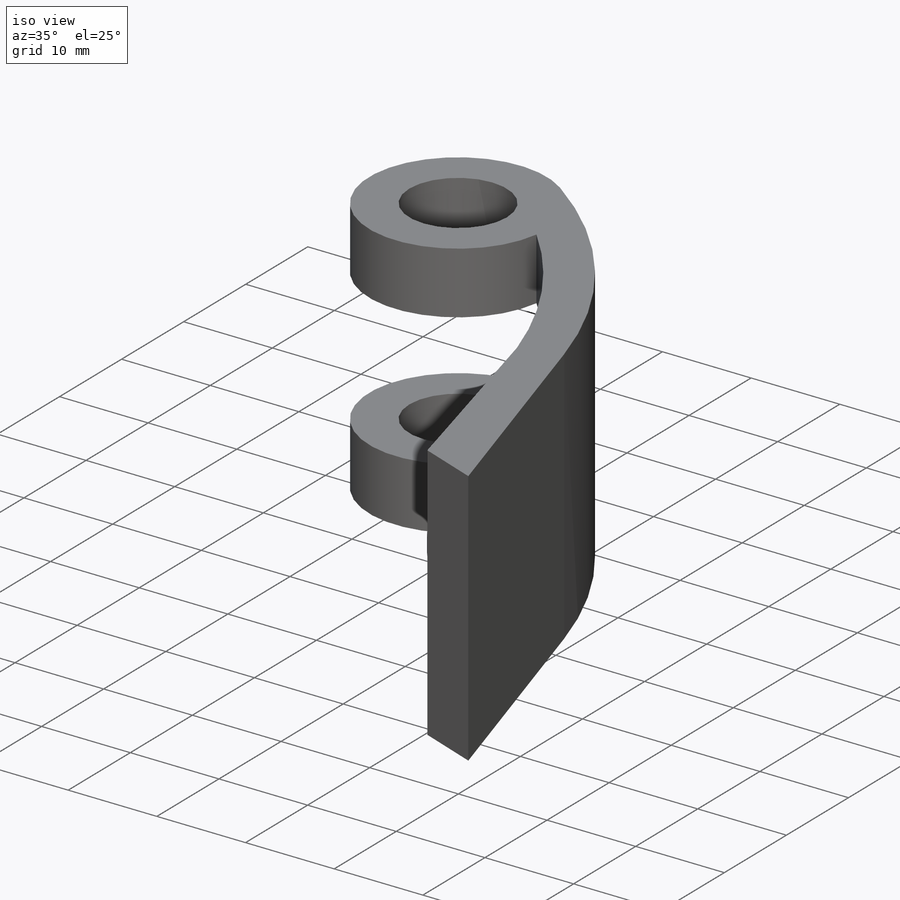
[diagram: iso view]
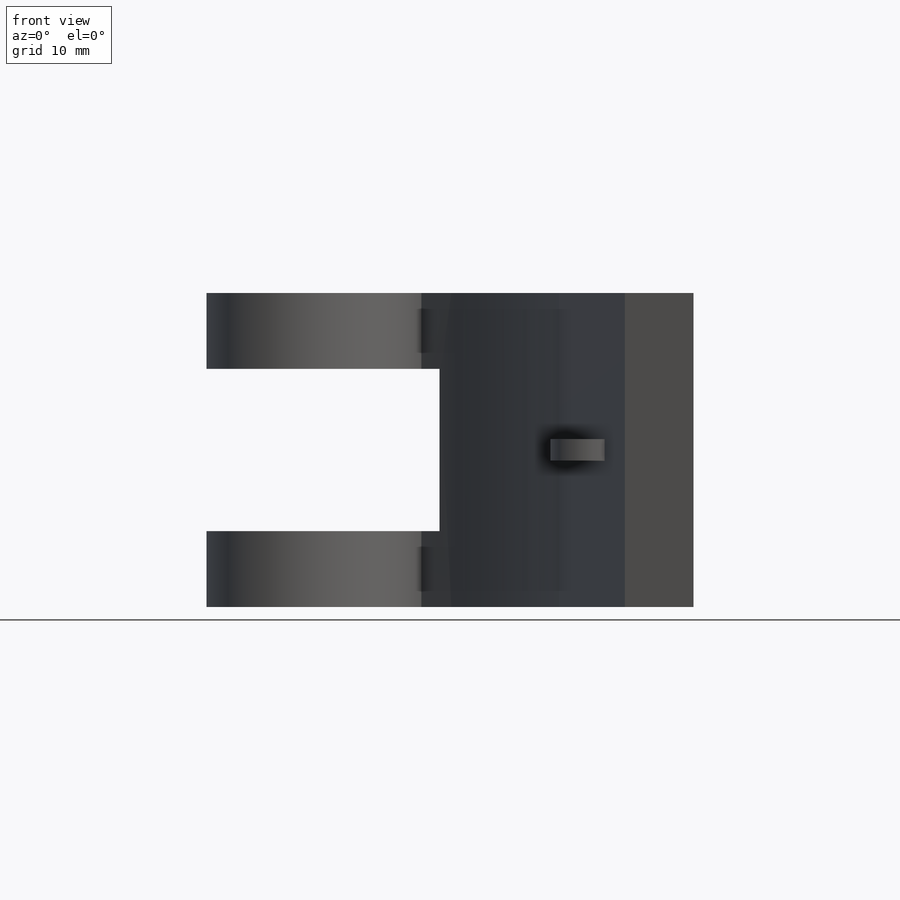
[diagram: front view]
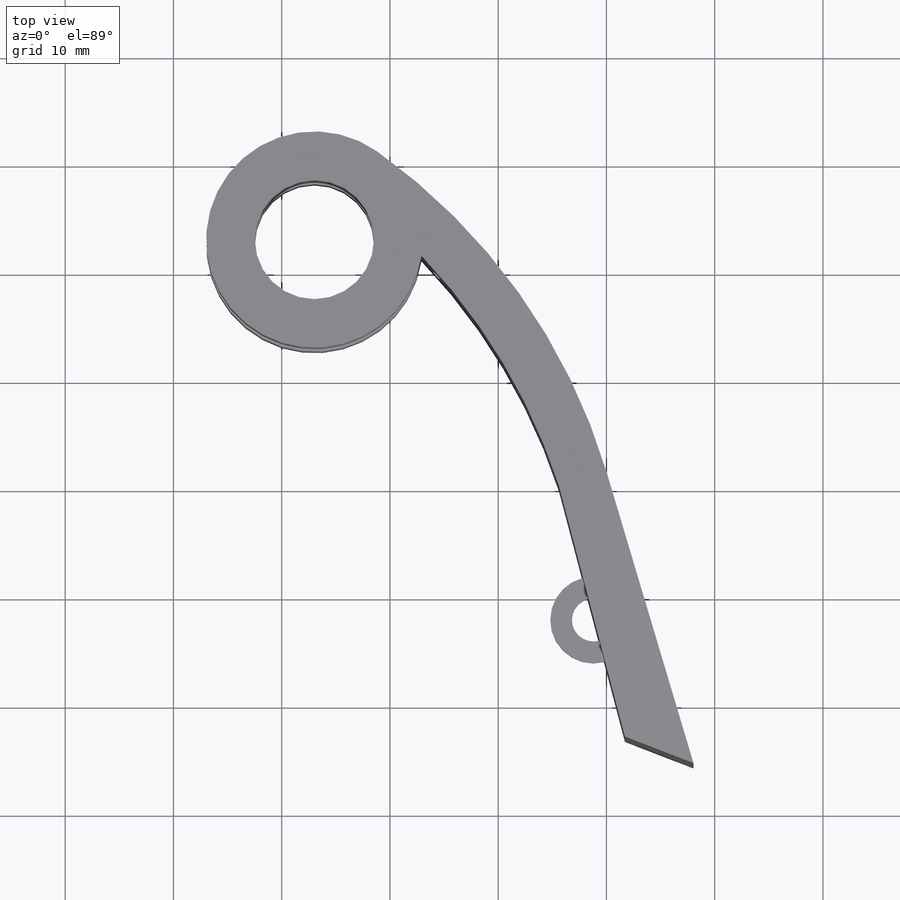
[diagram: top view]
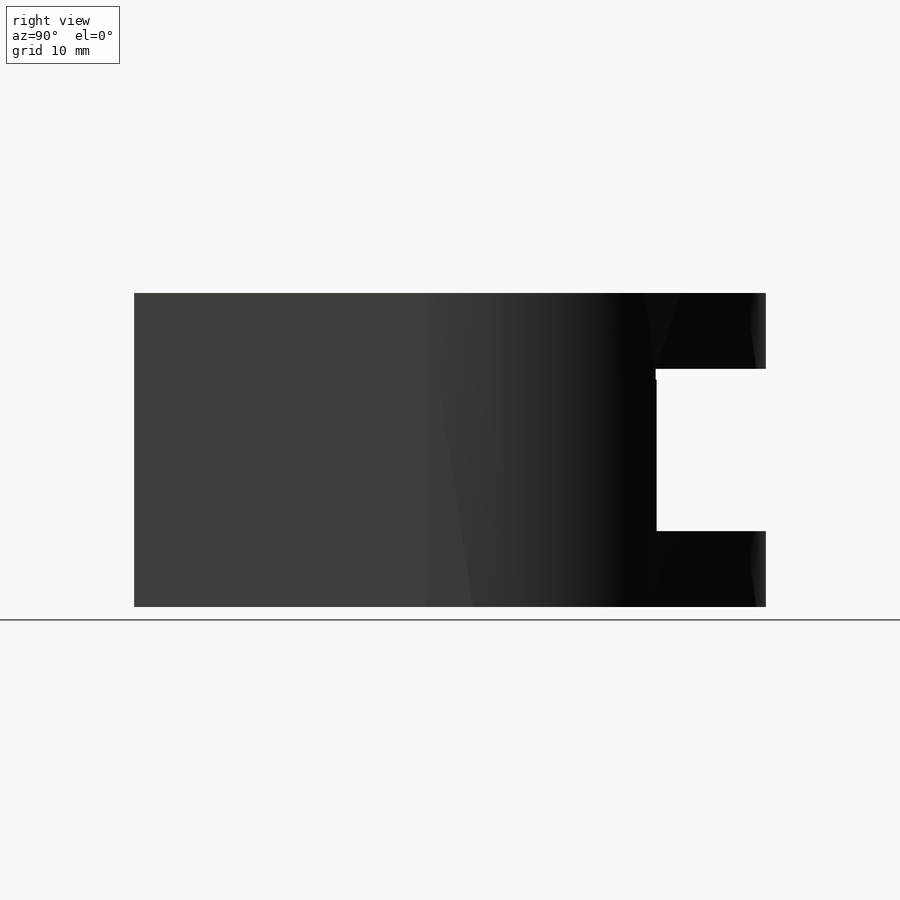
[diagram: right view]
SOLIDWORKS PART (.sldprt)
format: sldprt  version: not decoded by parser v0  size: 251,392 bytes
history: native  units: mm
features: sketch x4, plane x4, extrude x3, cut_extrude x2, material x1 (+11 scaffold rows collapsed)
feature tree (25):
  scaffold x11  (default folders/planes/origin — collapsed)
  material  "Plain Carbon Steel"
  sketch  "Sketch2"  dims[c1.D1=~15.976796mm c2.D1=142.06deg]
  extrude  "Boss-Extrude1"  Depth=29mm
  plane  "Plane1"  Offset=7mm
  sketch  "Sketch3"  dims[D1=11.7mm]
  cut_extrude  "Cut-Extrude2"  Depth=14mm
  plane  "Plane2"  Offset=0mm
  plane  "Plane3"  Offset=14.5mm
  sketch  "Sketch5"  dims[D1=~3.720399mm]
  extrude  "Boss-Extrude2"  Depth=1mm
  extrude  "Measure2"  [1 undecoded]
  plane  "Plane4"  Offset=7mm
  sketch  "Sketch6"  dims[D1=~12.119238mm]
  cut_extrude  "Cut-Extrude3"  Depth=1mm
decode coverage: 8 of 9 modeling features carry decoded parameters
note: ~ marks probable driven/reference dimensions
note: 1 parameter value undecoded
note: suppression state not decoded; provenance and decode notes live in map.json
